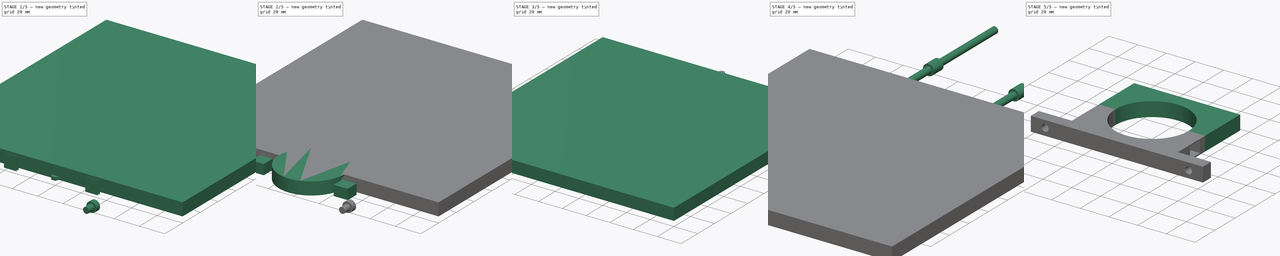
[diagram: build sequence overview — one tinted view per stage of 5, left to right]
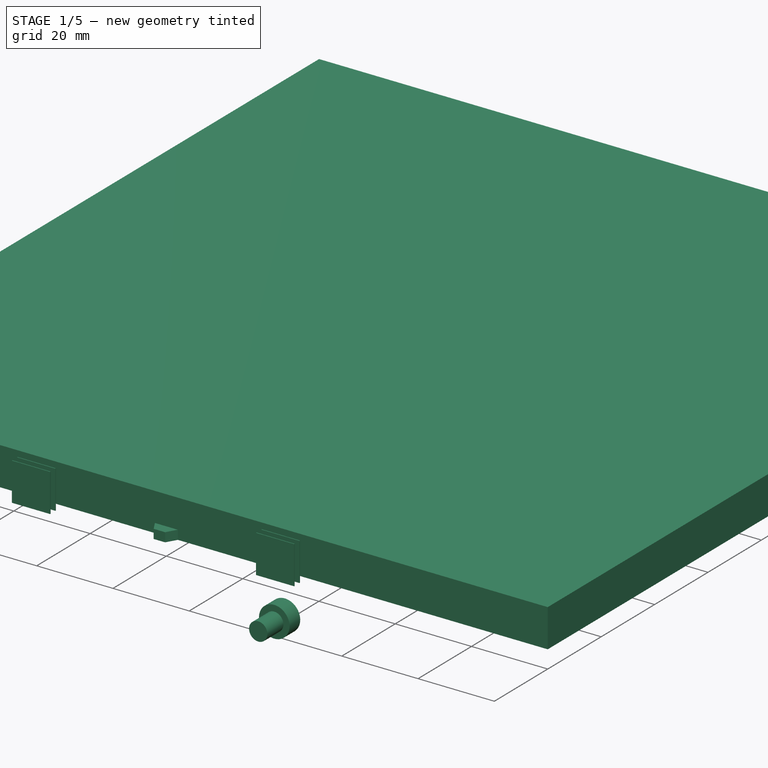
[diagram: stage 1 of 5 — iso view after this stage's code; geometry added in this stage tinted green]
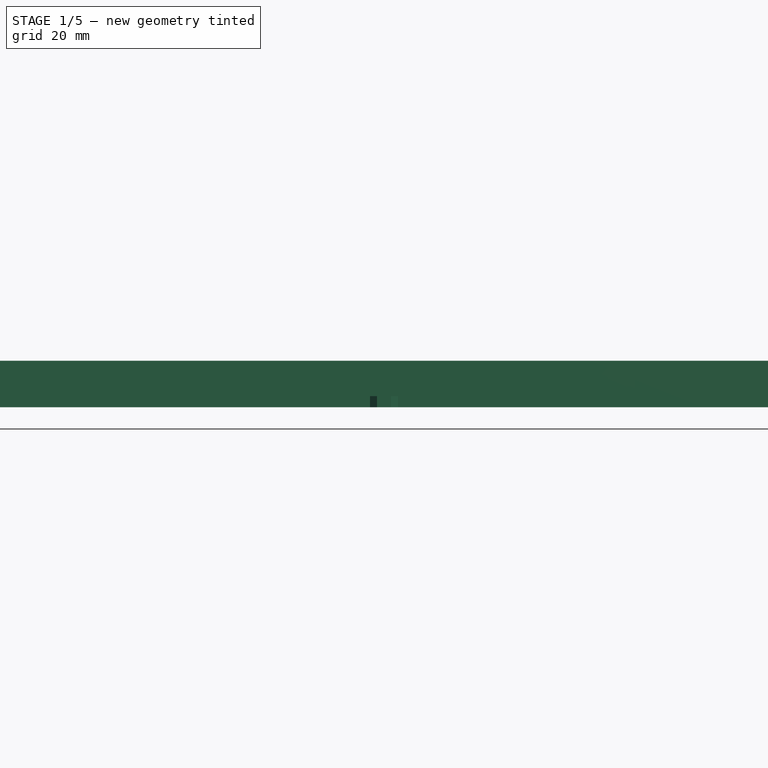
[diagram: stage 1 of 5 — front view after this stage's code; geometry added in this stage tinted green]
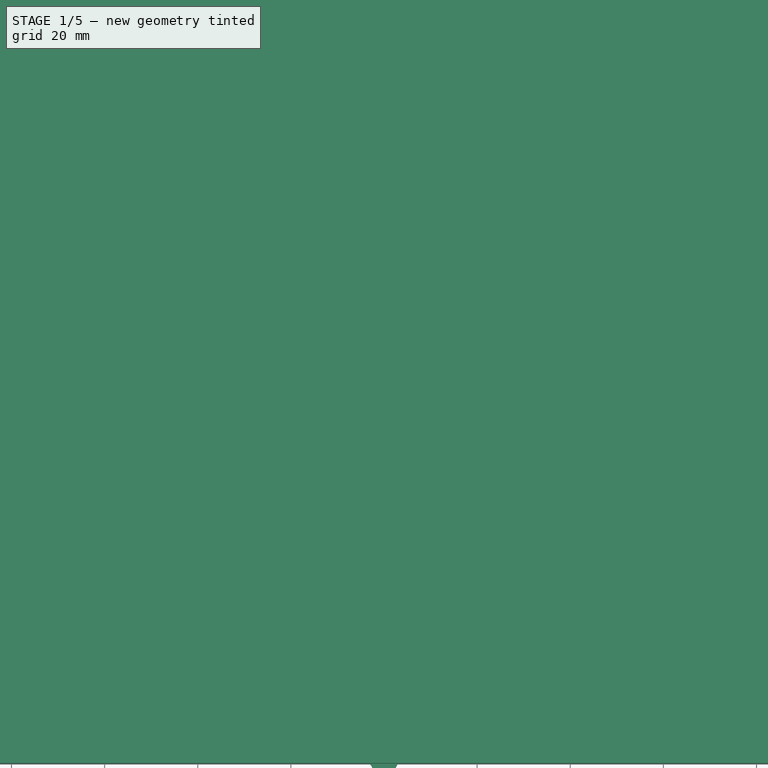
[diagram: stage 1 of 5 — top view after this stage's code; geometry added in this stage tinted green]
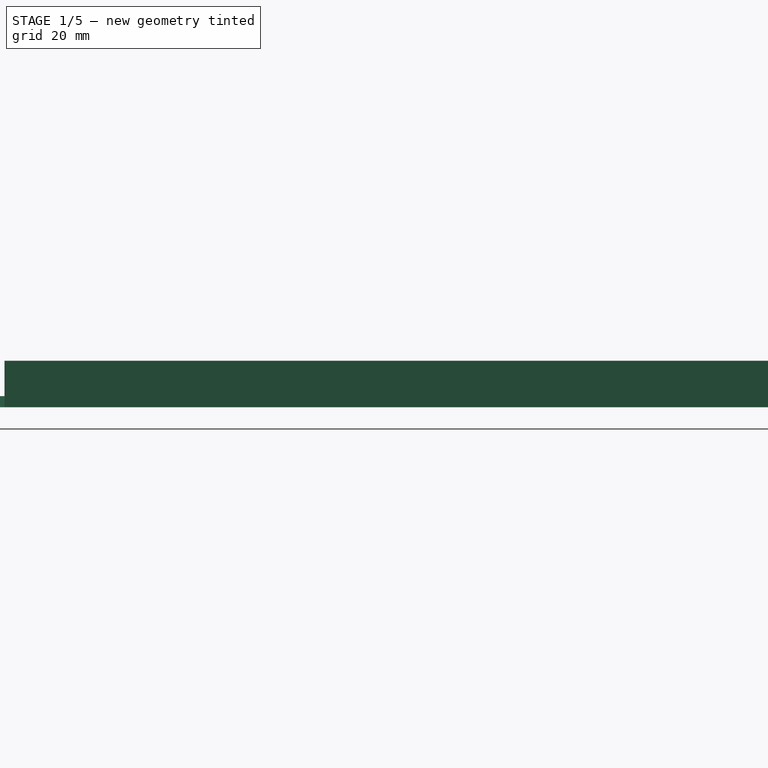
[diagram: stage 1 of 5 — right view after this stage's code; geometry added in this stage tinted green]
FCSTD DOCUMENT  (FreeCAD 0.21R0.20.1)
Label: TubeMount_CloudrayC35
License: All rights reserved
LicenseURL: https://en.wikipedia.org/wiki/All_rights_reserved
objects: Part::MultiFuse×20, Part::Cylinder×18, Part::Box×14, Part::Cut×12, App::Link×4, Sketcher::SketchObject×1, Part::Extrusion×1
note: 66 computed .brp shape members not serialized (recipe doc carries the construction recipe); baked Part::Feature solids carry a one-line shape summary decoded from their .brp
EXTERNAL_REF file=../../Fastener/Templates/Nut_DIN934_M4.FCStd obj=Extrude

FEATURE [Part::Cylinder] Cylinder014
  Angle = 360
  AttacherType = Attacher::AttachEngine3D
  FirstAngle = 0
  Height = 4
  Radius = 4
  SecondAngle = 0
FEATURE [Part::Cylinder] Cylinder015
  Angle = 360
  AttacherType = Attacher::AttachEngine3D
  FirstAngle = 0
  Height = 10
  Radius = 2.4
  SecondAngle = 0
FEATURE [Part::Cylinder] Cylinder016
  Angle = 360
  AttacherType = Attacher::AttachEngine3D
  FirstAngle = 0
  Height = 4
  Radius = 4
  SecondAngle = 0
FEATURE [Part::Cylinder] Cylinder017
  Angle = 360
  AttacherType = Attacher::AttachEngine3D
  FirstAngle = 0
  Height = 10
  Radius = 2.4
  SecondAngle = 0
FEATURE [Part::MultiFuse] Fusion014
  Placement = pos=(-50,-27,5) rot=(1,0,0;1.5708rad)
  Shapes = -> [Cylinder015,Cylinder014]
FEATURE [Part::MultiFuse] Fusion015
  Placement = pos=(50,-27,5) rot=(1,0,0;1.5708rad)
  Shapes = -> [Cylinder017,Cylinder016]
FEATURE [Part::Box] Box008  label="Cube008"
  AttacherType = Attacher::AttachEngine3D
  Height = 10
  Length = 200
  Placement = pos=(-100,0,0) rot=(0,0,1;0rad)
  Width = 200
FEATURE [Part::Box] Box010  label="Cube010"
  AttacherType = Attacher::AttachEngine3D
  Height = 10
  Length = 10
  Placement = pos=(-37,-5,0) rot=(0,0,1;0rad)
  Width = 0.2
FEATURE [Part::Box] Box011  label="Cube011"
  AttacherType = Attacher::AttachEngine3D
  Height = 10
  Length = 10
  Placement = pos=(-37,-3,0) rot=(0,0,1;0rad)
  Width = 0.2
FEATURE [Part::Box] Box012  label="Cube012"
  AttacherType = Attacher::AttachEngine3D
  Height = 10
  Length = 10
  Placement = pos=(27,-3,0) rot=(0,0,1;0rad)
  Width = 0.2
FEATURE [Part::Box] Box013  label="Cube013"
  AttacherType = Attacher::AttachEngine3D
  Height = 10
  Length = 10
  Placement = pos=(27,-5,0) rot=(0,0,1;0rad)
  Width = 0.2
FEATURE [Part::MultiFuse] Fusion018  label="PrintBridges_LowerPart"
  Shapes = -> [Box013,Box010,Box011,Box012]
FEATURE [Sketcher::SketchObject] Sketch
  FullyConstrained = true
  sketch-geometry (7):
    g0: LineSegment StartX=-3.005 StartY=0 StartZ=0 EndX=-1.5025 EndY=-2.60241 EndZ=0
    g1: LineSegment StartX=-1.5025 StartY=-2.60241 StartZ=0 EndX=1.5025 EndY=-2.60241 EndZ=0
    g2: LineSegment StartX=1.5025 StartY=-2.60241 StartZ=0 EndX=3.005 EndY=-9.7513e-12 EndZ=0
    g3: LineSegment StartX=3.005 StartY=-9.7512e-12 StartZ=0 EndX=1.5025 EndY=2.60241 EndZ=0
    g4: LineSegment StartX=1.5025 StartY=2.60241 StartZ=0 EndX=-1.5025 EndY=2.60241 EndZ=0
    g5: LineSegment StartX=-1.5025 StartY=2.60241 StartZ=0 EndX=-3.005 EndY=0 EndZ=0
    g6: Circle CenterX=0 CenterY=0 CenterZ=0 NormalX=0 NormalY=0 NormalZ=1 AngleXU=0 Radius=3.005
  constraints (16):
    c: Coincident(g0,g1)
    c: Coincident(g1,g2)
    c: Coincident(g2,g3)
    c: Coincident(g3,g4)
    c: Coincident(g4,g5)
    c: Coincident(g5,g0)
    c: Equal(g0, g1-g5) x5
    c: PointOnObject(g0,g6)
    c: PointOnObject(g1,g6)
    c: PointOnObject(g2,g6)
    c: PointOnObject(g3,g6)
    c: PointOnObject(g4,g6)
    c: PointOnObject(g5,g6)
    c: Coincident(g6,g-1)
    c: PointOnObject(g5,g-1)
    c: DistanceX(g0,g2) = 6.01
FEATURE [Part::Extrusion] Extrude  label="DIN934_M3"
  Base = -> Sketch
  Dir = (0,0,1)
  DirMode = 2
  FaceMakerClass = Part::FaceMakerBullseye
  LengthFwd = 2.4
  LengthRev = 0
  Solid = true
  Symmetric = false
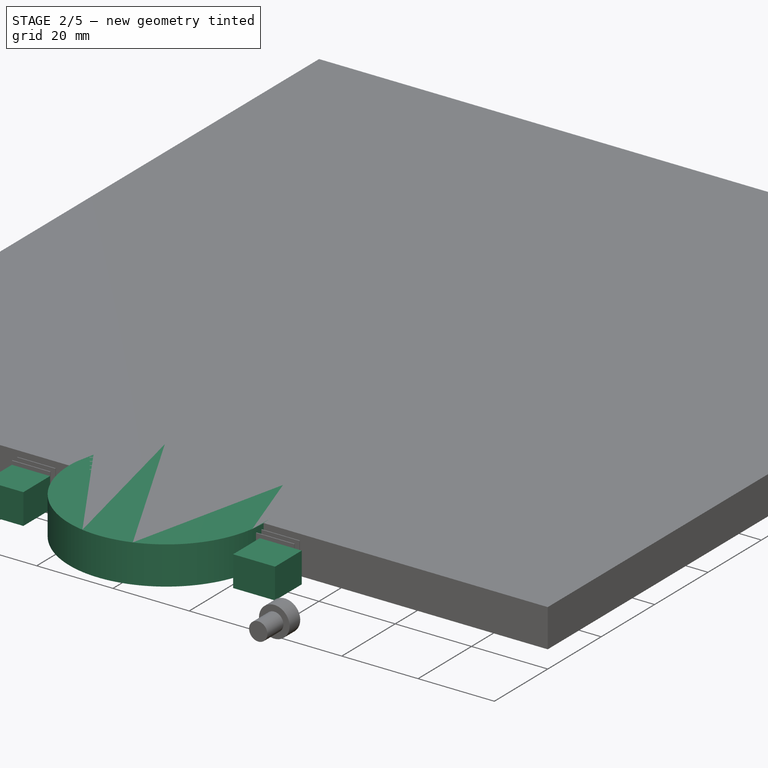
[diagram: stage 2 of 5 — iso view after this stage's code; geometry added in this stage tinted green]
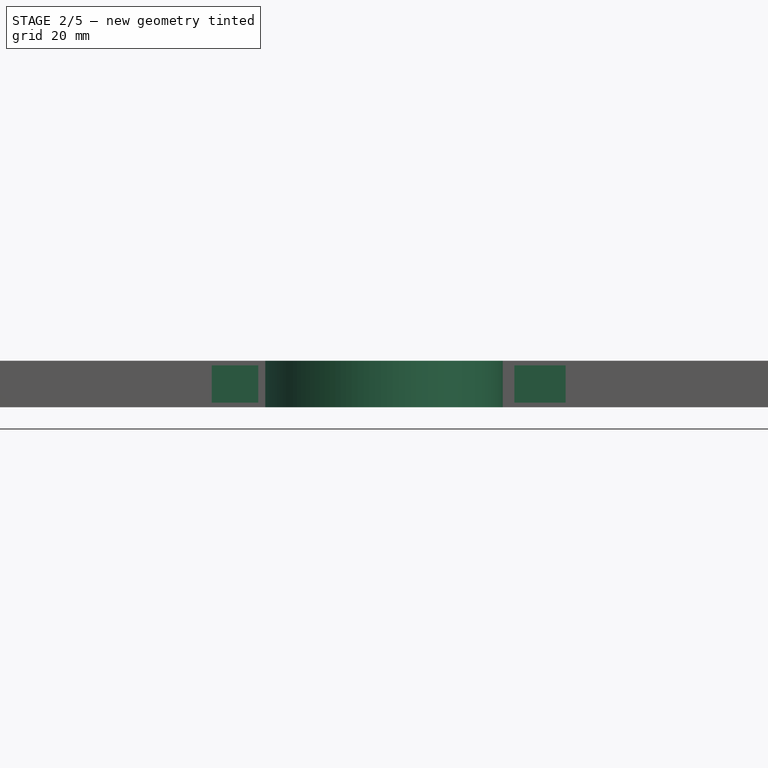
[diagram: stage 2 of 5 — front view after this stage's code; geometry added in this stage tinted green]
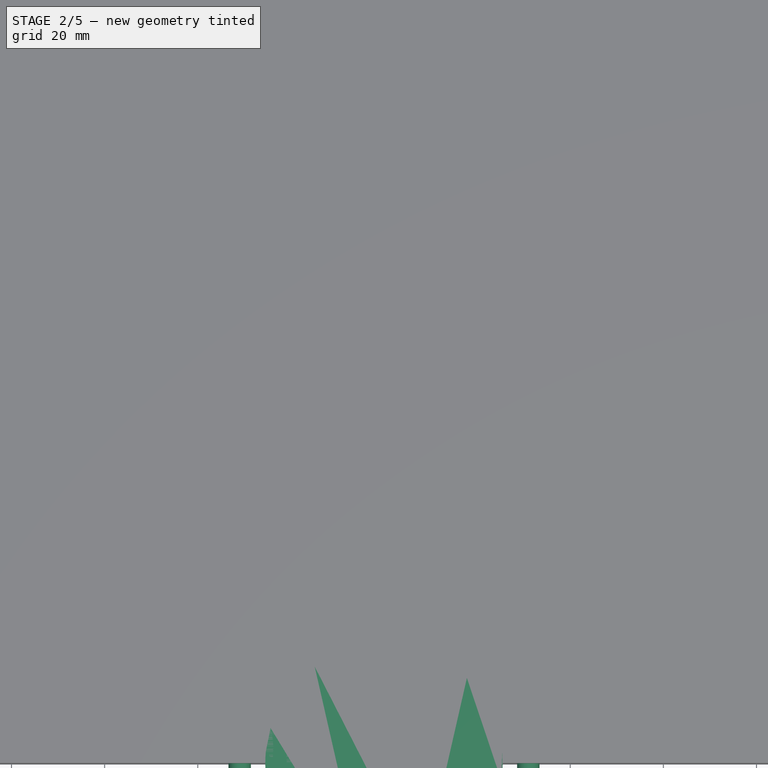
[diagram: stage 2 of 5 — top view after this stage's code; geometry added in this stage tinted green]
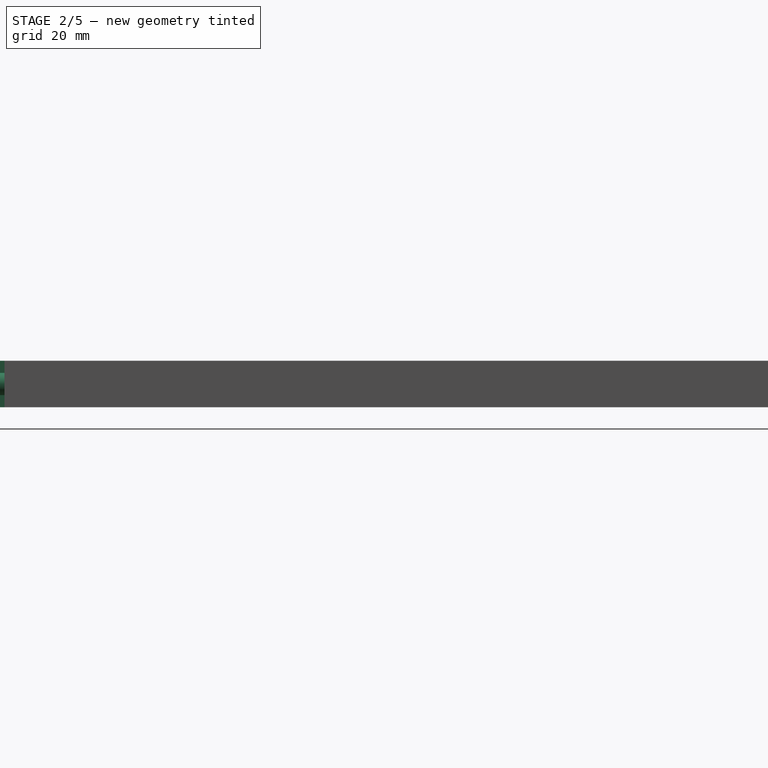
[diagram: stage 2 of 5 — right view after this stage's code; geometry added in this stage tinted green]
FEATURE [Part::Box] Box005  label="Cube005"
  AttacherType = Attacher::AttachEngine3D
  Height = 8
  Length = 10
  Placement = pos=(-37,-15,1) rot=(0,0,1;0rad)
  Width = 10
FEATURE [Part::Box] Box006  label="Cube006"
  AttacherType = Attacher::AttachEngine3D
  Height = 8
  Length = 11
  Placement = pos=(-39,-15,1) rot=(0,0,1;0rad)
  Width = 10
FEATURE [Part::Cylinder] Cylinder009
  Angle = 360
  AttacherType = Attacher::AttachEngine3D
  FirstAngle = 0
  Height = 10
  Radius = 25.5
  SecondAngle = 0
FEATURE [Part::Cylinder] Cylinder010
  Angle = 360
  AttacherType = Attacher::AttachEngine3D
  FirstAngle = 0
  Height = 100
  Placement = pos=(-31,94,5) rot=(1,0,0;1.5708rad)
  Radius = 2.4
  SecondAngle = 0
FEATURE [Part::Cylinder] Cylinder011
  Angle = 360
  AttacherType = Attacher::AttachEngine3D
  FirstAngle = 0
  Height = 100
  Placement = pos=(31,94,5) rot=(1,0,0;1.5708rad)
  Radius = 2.4
  SecondAngle = 0
FEATURE [Part::Cylinder] Cylinder012
  Angle = 360
  AttacherType = Attacher::AttachEngine3D
  FirstAngle = 0
  Height = 10
  Placement = pos=(31,35,5) rot=(1,0,0;1.5708rad)
  Radius = 4
  SecondAngle = 0
FEATURE [Part::Cylinder] Cylinder013
  Angle = 360
  AttacherType = Attacher::AttachEngine3D
  FirstAngle = 0
  Height = 10
  Placement = pos=(-31,35,5) rot=(1,0,0;1.5708rad)
  Radius = 4
  SecondAngle = 0
FEATURE [Part::MultiFuse] Fusion012
  Shapes = -> [Cylinder011,Cylinder010]
FEATURE [Part::MultiFuse] Fusion013
  Shapes = -> [Cylinder013,Cylinder012]
FEATURE [Part::MultiFuse] Fusion016
  Shapes = -> [Fusion015,Fusion014]
FEATURE [App::Link] Link002  label="DIN934_M007"
  LinkPlacement = pos=(-31,-3,5) rot=(1,0,0;1.5708rad)
  LinkedObject = -> Extrude
  Placement = pos=(-31,-3,5) rot=(1,0,0;1.5708rad)
  Scale = 1.1
  ScaleVector = (1.1,1.1,1.1)
FEATURE [Part::MultiFuse] Fusion009
  Shapes = -> [Link002,Box005]
FEATURE [App::Link] Link003  label="DIN934_M008"
  LinkPlacement = pos=(-31,-3,5) rot=(1,0,0;1.5708rad)
  LinkedObject = -> Extrude
  Placement = pos=(-31,-3,5) rot=(1,0,0;1.5708rad)
FEATURE [Part::MultiFuse] Fusion010
  Placement = pos=(0,0,10) rot=(0,1,0;3.14159rad)
  Shapes = -> [Box006,Link003]
FEATURE [Part::MultiFuse] Fusion011
  Shapes = -> [Fusion009,Fusion010]
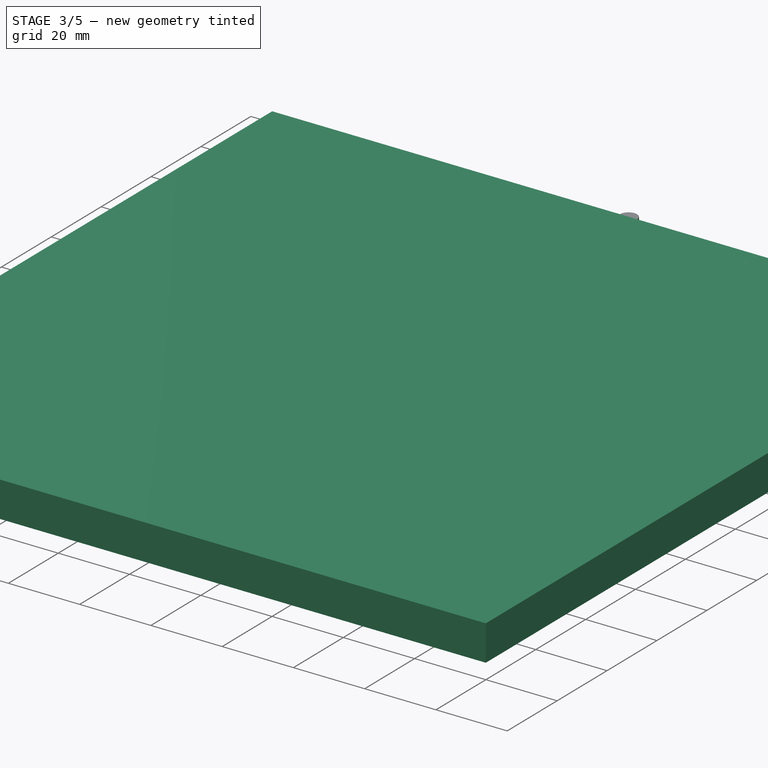
[diagram: stage 3 of 5 — iso view after this stage's code; geometry added in this stage tinted green]
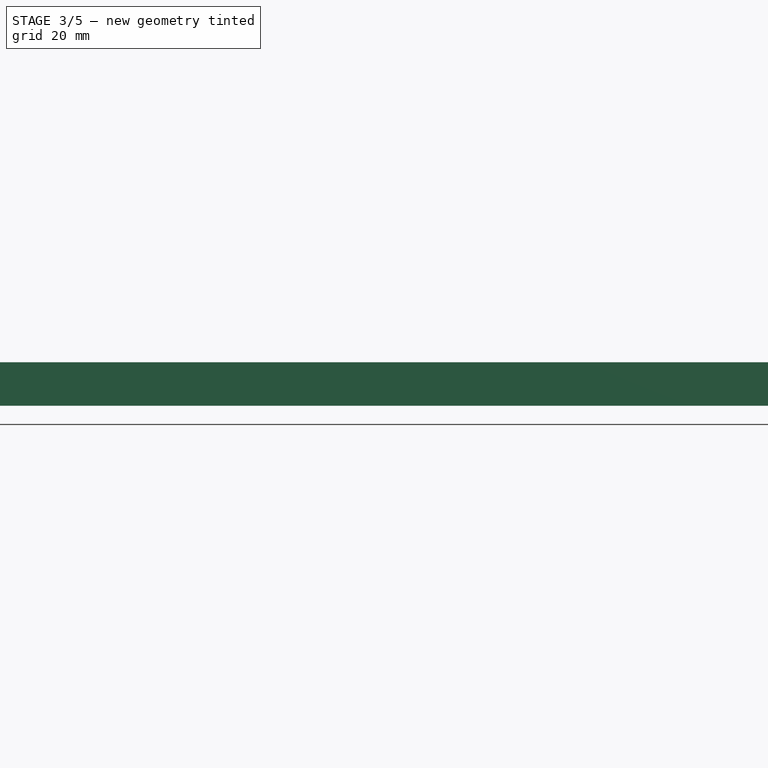
[diagram: stage 3 of 5 — front view after this stage's code; geometry added in this stage tinted green]
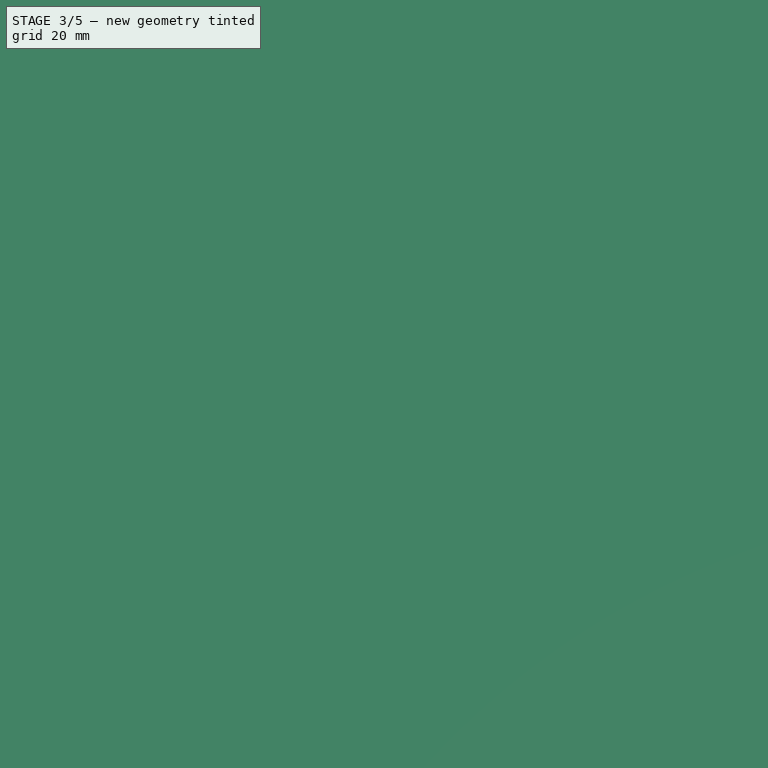
[diagram: stage 3 of 5 — top view after this stage's code; geometry added in this stage tinted green]
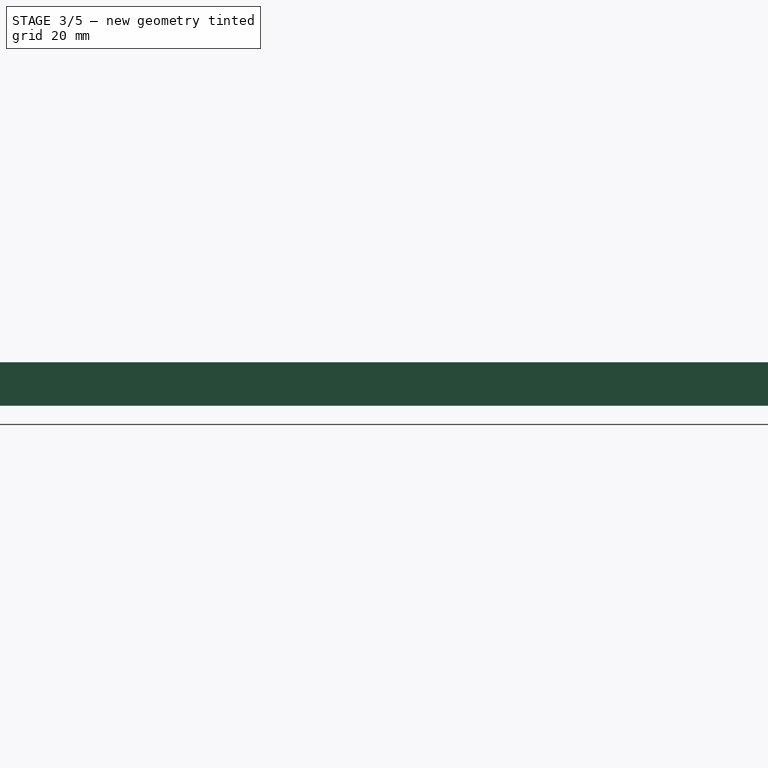
[diagram: stage 3 of 5 — right view after this stage's code; geometry added in this stage tinted green]
FEATURE [Part::Cylinder] Cylinder007
  Angle = 360
  AttacherType = Attacher::AttachEngine3D
  FirstAngle = 0
  Height = 4
  Radius = 4
  SecondAngle = 0
FEATURE [Part::Cylinder] Cylinder008
  Angle = 360
  AttacherType = Attacher::AttachEngine3D
  FirstAngle = 0
  Height = 10
  Radius = 2.4
  SecondAngle = 0
FEATURE [Sketcher::SketchObject] Sketch
  FullyConstrained = true
  sketch-geometry (7):
    g0: LineSegment StartX=-3.005 StartY=0 StartZ=0 EndX=-1.5025 EndY=-2.60241 EndZ=0
    g1: LineSegment StartX=-1.5025 StartY=-2.60241 StartZ=0 EndX=1.5025 EndY=-2.60241 EndZ=0
    g2: LineSegment StartX=1.5025 StartY=-2.60241 StartZ=0 EndX=3.005 EndY=-9.7513e-12 EndZ=0
    g3: LineSegment StartX=3.005 StartY=-9.7512e-12 StartZ=0 EndX=1.5025 EndY=2.60241 EndZ=0
    g4: LineSegment StartX=1.5025 StartY=2.60241 StartZ=0 EndX=-1.5025 EndY=2.60241 EndZ=0
    g5: LineSegment StartX=-1.5025 StartY=2.60241 StartZ=0 EndX=-3.005 EndY=0 EndZ=0
    g6: Circle CenterX=0 CenterY=0 CenterZ=0 NormalX=0 NormalY=0 NormalZ=1 AngleXU=0 Radius=3.005
  constraints (16):
    c: Coincident(g0,g1)
    c: Coincident(g1,g2)
    c: Coincident(g2,g3)
    c: Coincident(g3,g4)
    c: Coincident(g4,g5)
    c: Coincident(g5,g0)
    c: Equal(g0, g1-g5) x5
    c: PointOnObject(g0,g6)
    c: PointOnObject(g1,g6)
    c: PointOnObject(g2,g6)
    c: PointOnObject(g3,g6)
    c: PointOnObject(g4,g6)
    c: PointOnObject(g5,g6)
    c: Coincident(g6,g-1)
    c: PointOnObject(g5,g-1)
    c: DistanceX(g0,g2) = 6.01
FEATURE [Part::Extrusion] Extrude  label="DIN934_M006"
  Base = -> Sketch
  Dir = (0,0,1)
  DirMode = 2
  FaceMakerClass = Part::FaceMakerBullseye
  LengthFwd = 2.4
  LengthRev = 0
  Solid = true
  Symmetric = false
FEATURE [Part::Box] Box004  label="Cube004"
  AttacherType = Attacher::AttachEngine3D
  Height = 10
  Length = 74
  Placement = pos=(-37,-35,0) rot=(0,0,1;0rad)
  Width = 70
FEATURE [Part::Box] Box007  label="Cube007"
  AttacherType = Attacher::AttachEngine3D
  Height = 10
  Length = 120
  Placement = pos=(-60,-35,0) rot=(0.707107,0,0.707107;0rad)
  Width = 8
FEATURE [Part::Cut] Cut005
  Base = -> Box004
  Tool = -> Cylinder009
FEATURE [Part::Cut] Cut009
  Base = -> Box007
  Tool = -> Fusion016
FEATURE [Part::Cut] Cut006
  Base = -> Cut005
  Tool = -> Fusion011
FEATURE [Part::Cut] Cut007
  Base = -> Cut006
  Tool = -> Fusion012
FEATURE [Part::Cut] Cut008
  Base = -> Cut007
  Tool = -> Fusion013
FEATURE [Part::MultiFuse] Fusion017  label="FullHolder_002"
  Shapes = -> [Cut008,Cut009]
FEATURE [Part::Box] Box009  label="Cube009"
  AttacherType = Attacher::AttachEngine3D
  Height = 10
  Length = 200
  Placement = pos=(-100,-200,0) rot=(0,0,1;0rad)
  Width = 200
FEATURE [Part::Cut] Cut011  label="LowerPart"
  Base = -> Fusion017
  Tool = -> Box008
FEATURE [Part::MultiFuse] Fusion019  label="LowerPart_Print"
  Shapes = -> [Fusion018,Cut011]

RESOLVED EXTERNAL PARTS (link-assembly join: the EXTERNAL_REF files above that resolve inside this repo's crawl, each included once):
---- part ../../Fastener/Templates/Nut_DIN934_M4.FCStd = doc fcstd_294c8c891653 ----
FCSTD DOCUMENT  (FreeCAD 0.21R0.20.1)
Label: Nut_DIN934_M3
License: All rights reserved
LicenseURL: https://en.wikipedia.org/wiki/All_rights_reserved
objects: Sketcher::SketchObject×1, Part::Extrusion×1
note: 2 computed .brp shape members not serialized (recipe doc carries the construction recipe); baked Part::Feature solids carry a one-line shape summary decoded from their .brp
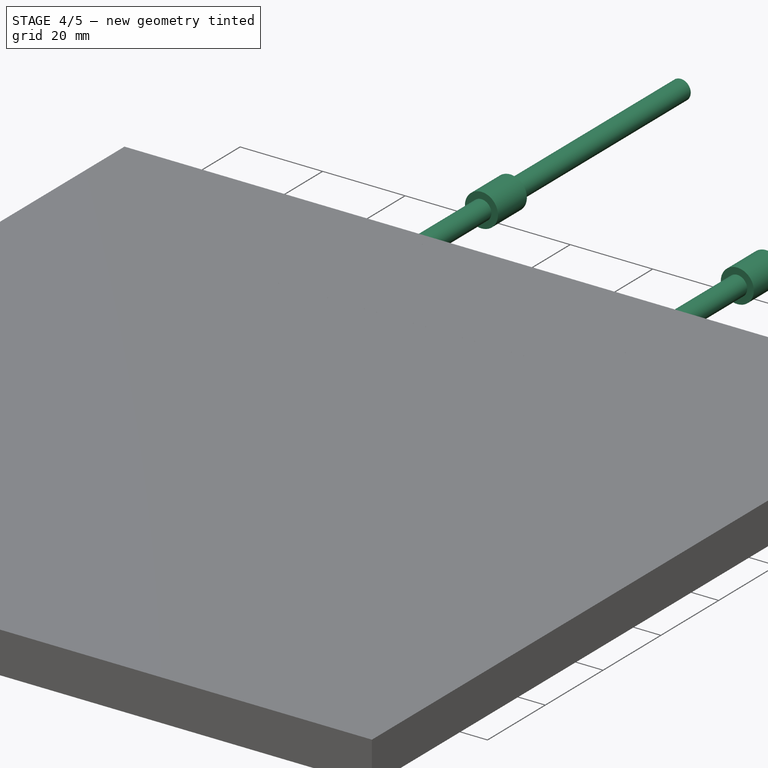
[diagram: stage 4 of 5 — iso view after this stage's code; geometry added in this stage tinted green]
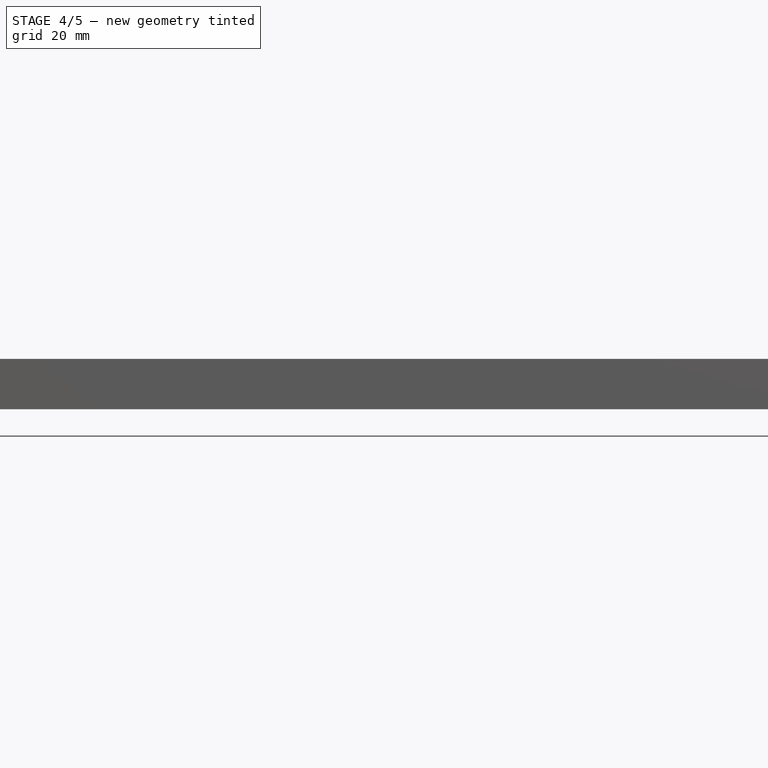
[diagram: stage 4 of 5 — front view after this stage's code; geometry added in this stage tinted green]
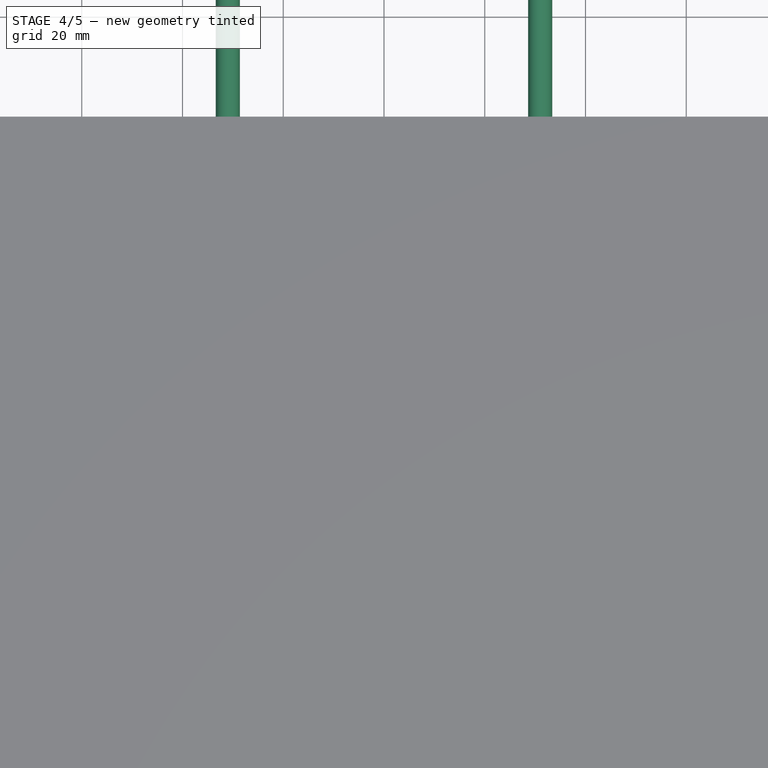
[diagram: stage 4 of 5 — top view after this stage's code; geometry added in this stage tinted green]
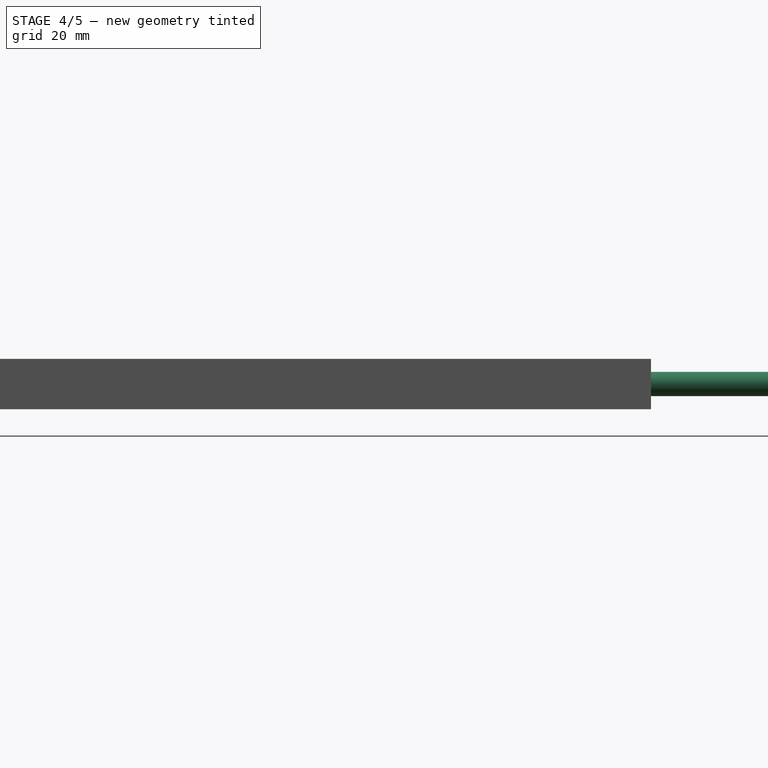
[diagram: stage 4 of 5 — right view after this stage's code; geometry added in this stage tinted green]
FEATURE [Part::Cylinder] Cylinder001
  Angle = 360
  AttacherType = Attacher::AttachEngine3D
  FirstAngle = 0
  Height = 100
  Placement = pos=(-31,94,5) rot=(1,0,0;1.5708rad)
  Radius = 2.4
  SecondAngle = 0
FEATURE [Part::Cylinder] Cylinder002
  Angle = 360
  AttacherType = Attacher::AttachEngine3D
  FirstAngle = 0
  Height = 100
  Placement = pos=(31,94,5) rot=(1,0,0;1.5708rad)
  Radius = 2.4
  SecondAngle = 0
FEATURE [Part::MultiFuse] Fusion003
  Shapes = -> [Cylinder002,Cylinder001]
FEATURE [Part::Cylinder] Cylinder003
  Angle = 360
  AttacherType = Attacher::AttachEngine3D
  FirstAngle = 0
  Height = 10
  Placement = pos=(31,35,5) rot=(1,0,0;1.5708rad)
  Radius = 4
  SecondAngle = 0
FEATURE [Part::Cylinder] Cylinder004
  Angle = 360
  AttacherType = Attacher::AttachEngine3D
  FirstAngle = 0
  Height = 10
  Placement = pos=(-31,35,5) rot=(1,0,0;1.5708rad)
  Radius = 4
  SecondAngle = 0
FEATURE [Part::MultiFuse] Fusion004
  Shapes = -> [Cylinder004,Cylinder003]
FEATURE [Part::Box] Box003  label="Cube003"
  AttacherType = Attacher::AttachEngine3D
  Height = 10
  Length = 120
  Placement = pos=(-60,-35,0) rot=(0.707107,0,0.707107;0rad)
  Width = 8
FEATURE [Part::Cylinder] Cylinder005
  Angle = 360
  AttacherType = Attacher::AttachEngine3D
  FirstAngle = 0
  Height = 4
  Radius = 4
  SecondAngle = 0
FEATURE [Part::Cylinder] Cylinder006
  Angle = 360
  AttacherType = Attacher::AttachEngine3D
  FirstAngle = 0
  Height = 10
  Radius = 2.4
  SecondAngle = 0
FEATURE [Part::MultiFuse] Fusion005
  Placement = pos=(-50,-27,5) rot=(1,0,0;1.5708rad)
  Shapes = -> [Cylinder006,Cylinder005]
FEATURE [Part::MultiFuse] Fusion006
  Placement = pos=(50,-27,5) rot=(1,0,0;1.5708rad)
  Shapes = -> [Cylinder008,Cylinder007]
FEATURE [Part::MultiFuse] Fusion007
  Shapes = -> [Fusion006,Fusion005]
FEATURE [Part::Cut] Cut004
  Base = -> Box003
  Tool = -> Fusion007
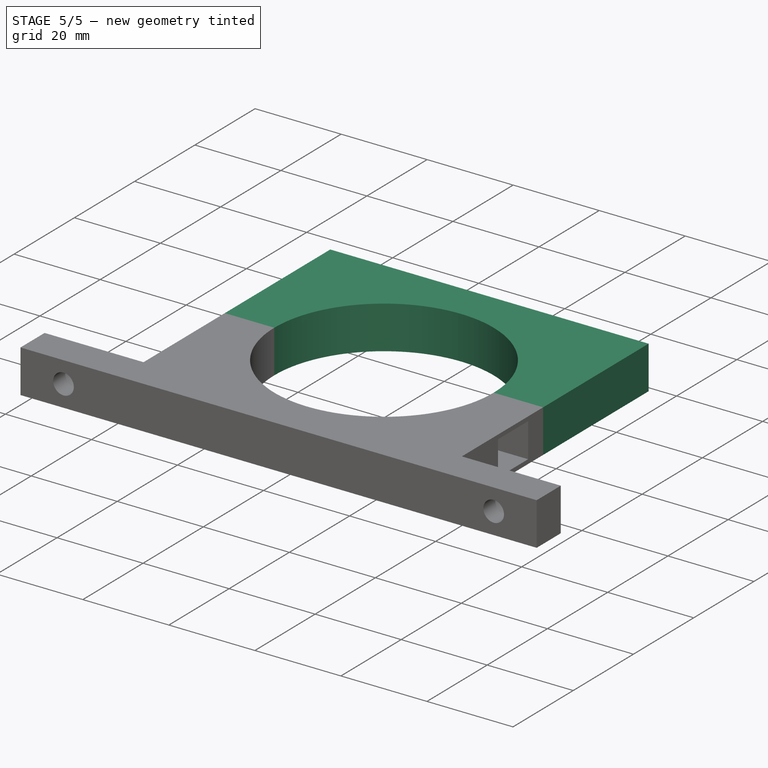
[diagram: stage 5 of 5 — iso view after this stage's code; geometry added in this stage tinted green]
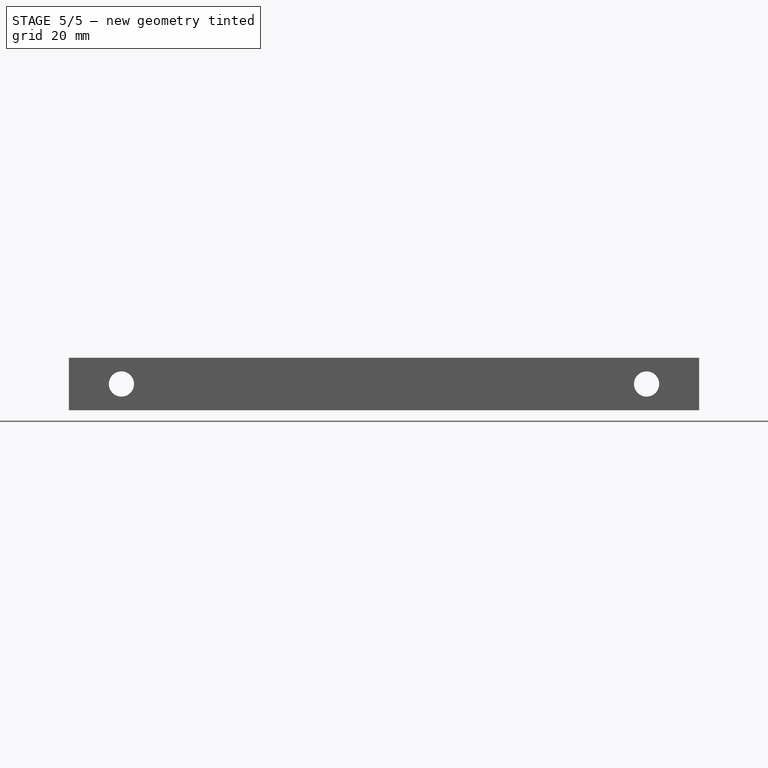
[diagram: stage 5 of 5 — front view after this stage's code; geometry added in this stage tinted green]
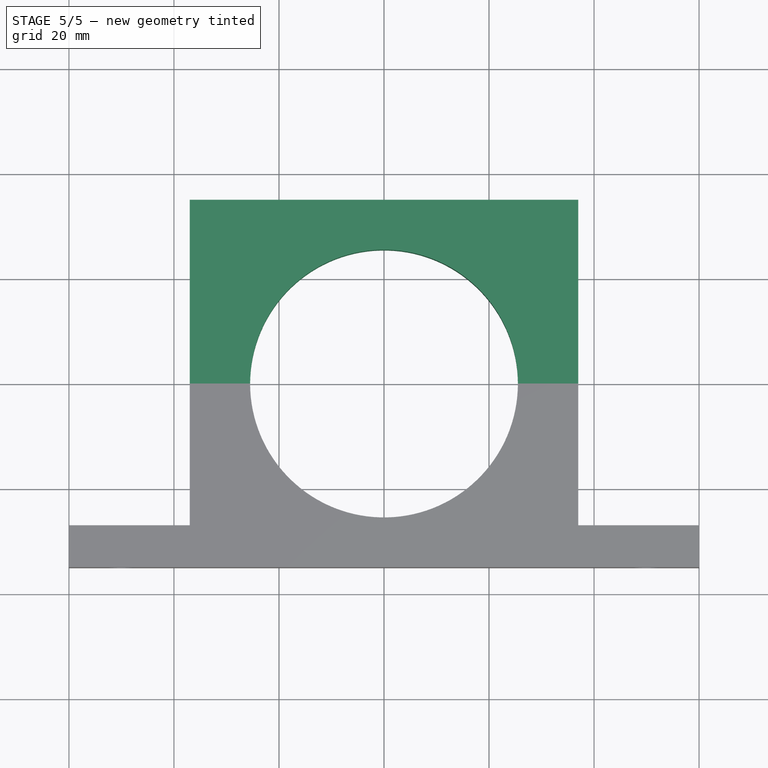
[diagram: stage 5 of 5 — top view after this stage's code; geometry added in this stage tinted green]
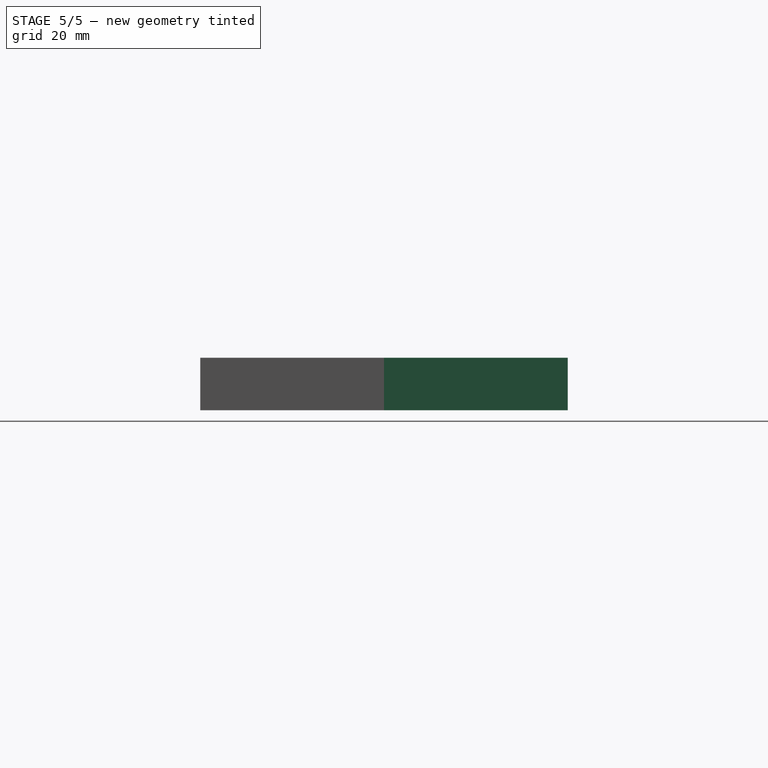
[diagram: stage 5 of 5 — right view after this stage's code; geometry added in this stage tinted green]
FEATURE [Part::Cylinder] Cylinder
  Angle = 360
  AttacherType = Attacher::AttachEngine3D
  FirstAngle = 0
  Height = 10
  Radius = 25.5
  SecondAngle = 0
FEATURE [Part::Box] Box  label="Cube"
  AttacherType = Attacher::AttachEngine3D
  Height = 10
  Length = 74
  Placement = pos=(-37,-35,0) rot=(0,0,1;0rad)
  Width = 70
FEATURE [Part::Cut] Cut
  Base = -> Box
  Tool = -> Cylinder
FEATURE [App::Link] Link  label="DIN934_M4"
  LinkPlacement = pos=(-31,-3,5) rot=(1,0,0;1.5708rad)
  LinkedObject = -> <external ../../Fastener/Templates/Nut_DIN934_M4.FCStd>#Extrude
  Placement = pos=(-31,-3,5) rot=(1,0,0;1.5708rad)
  Scale = 1.1
  ScaleVector = (1.1,1.1,1.1)
FEATURE [Part::Box] Box001  label="Cube001"
  AttacherType = Attacher::AttachEngine3D
  Height = 8
  Length = 10
  Placement = pos=(-37,-15,1) rot=(0,0,1;0rad)
  Width = 10
FEATURE [Part::MultiFuse] Fusion
  Shapes = -> [Link,Box001]
FEATURE [Part::Box] Box002  label="Cube002"
  AttacherType = Attacher::AttachEngine3D
  Height = 8
  Length = 11
  Placement = pos=(-39,-15,1) rot=(0,0,1;0rad)
  Width = 10
FEATURE [App::Link] Link001  label="DIN934_M005"
  LinkPlacement = pos=(-31,-3,5) rot=(1,0,0;1.5708rad)
  LinkedObject = -> <external ../../Fastener/Templates/Nut_DIN934_M4.FCStd>#Extrude
  Placement = pos=(-31,-3,5) rot=(1,0,0;1.5708rad)
FEATURE [Part::MultiFuse] Fusion001
  Placement = pos=(0,0,10) rot=(0,1,0;3.14159rad)
  Shapes = -> [Box002,Link001]
FEATURE [Part::MultiFuse] Fusion002
  Shapes = -> [Fusion,Fusion001]
FEATURE [Part::Cut] Cut001
  Base = -> Cut
  Tool = -> Fusion002
FEATURE [Part::Cut] Cut002
  Base = -> Cut001
  Tool = -> Fusion003
FEATURE [Part::Cut] Cut003
  Base = -> Cut002
  Tool = -> Fusion004
FEATURE [Part::MultiFuse] Fusion008  label="FullHolder_01"
  Shapes = -> [Cut003,Cut004]
FEATURE [Part::Cut] Cut010  label="UpperPart"
  Base = -> Fusion008
  Tool = -> Box009
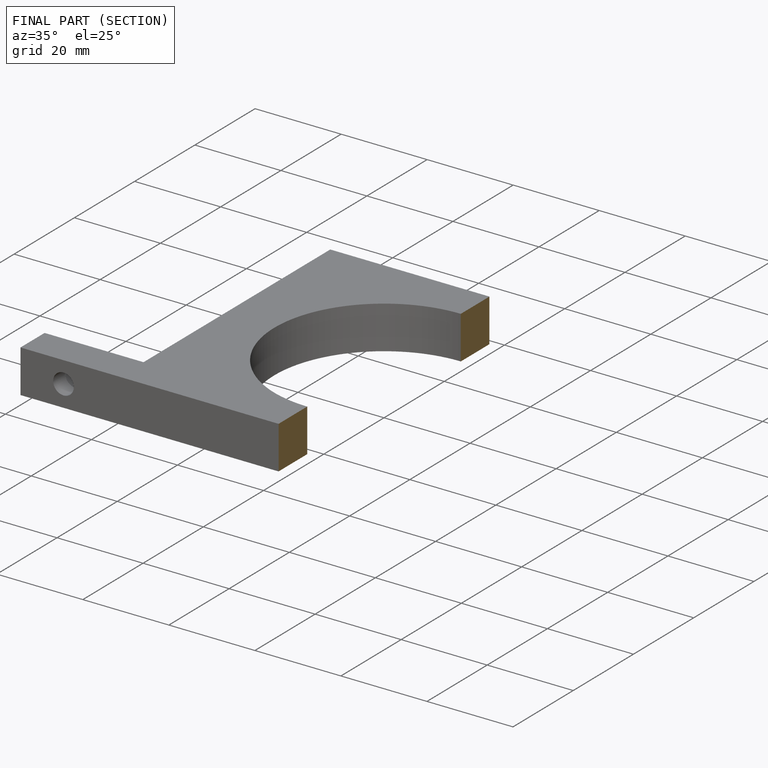
[diagram: finished part — half-section view (interior)]
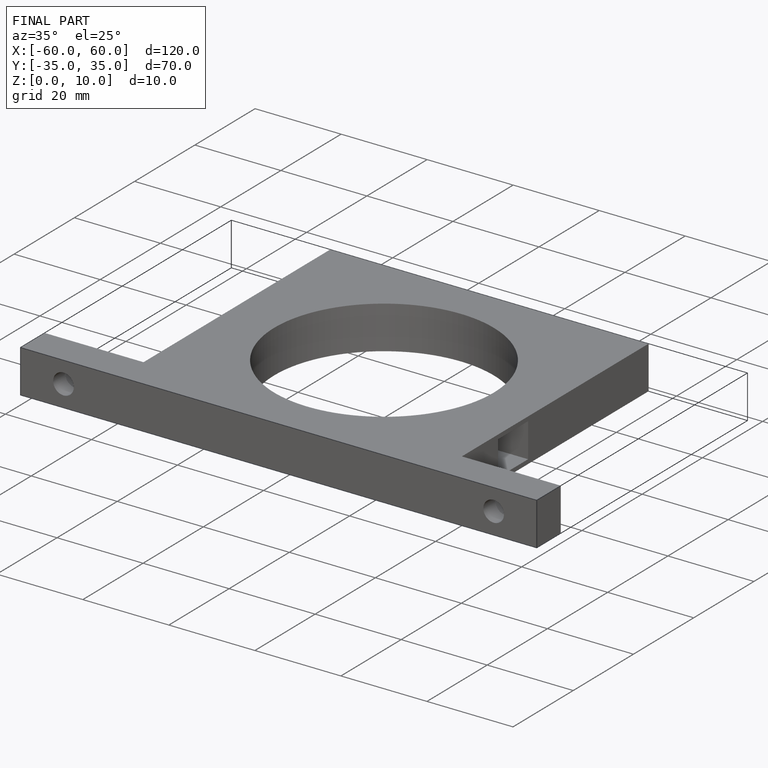
[diagram: finished part — iso view with bounding-box wireframe]
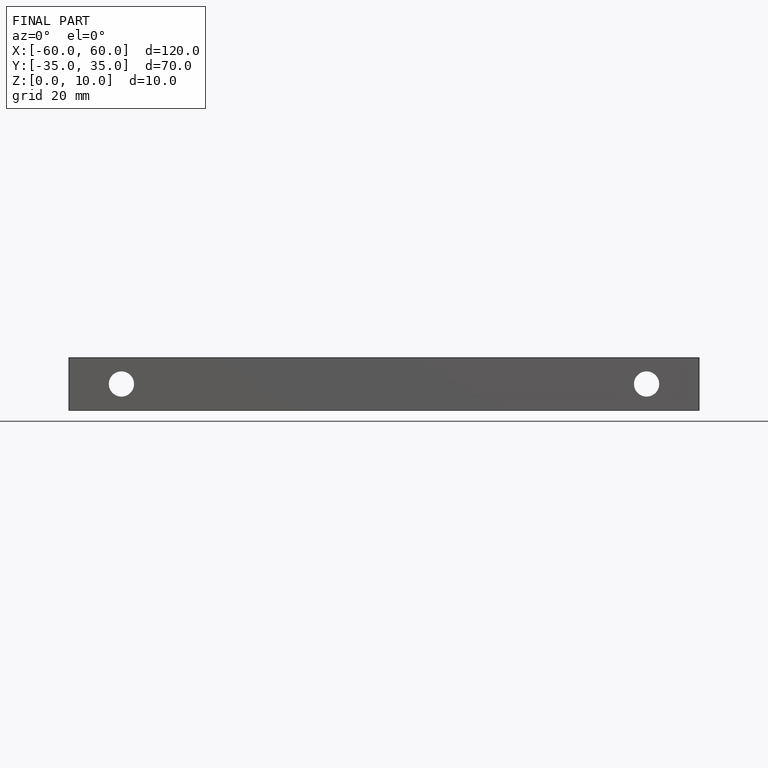
[diagram: finished part — front view with bounding-box wireframe]
